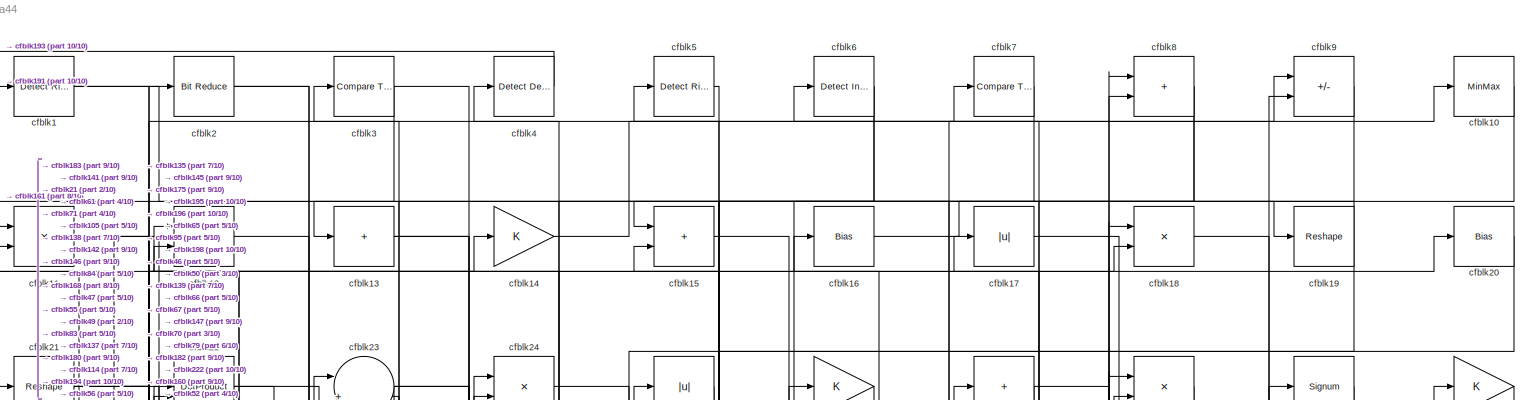
[diagram: root canvas - part 1/10, full width, top band]
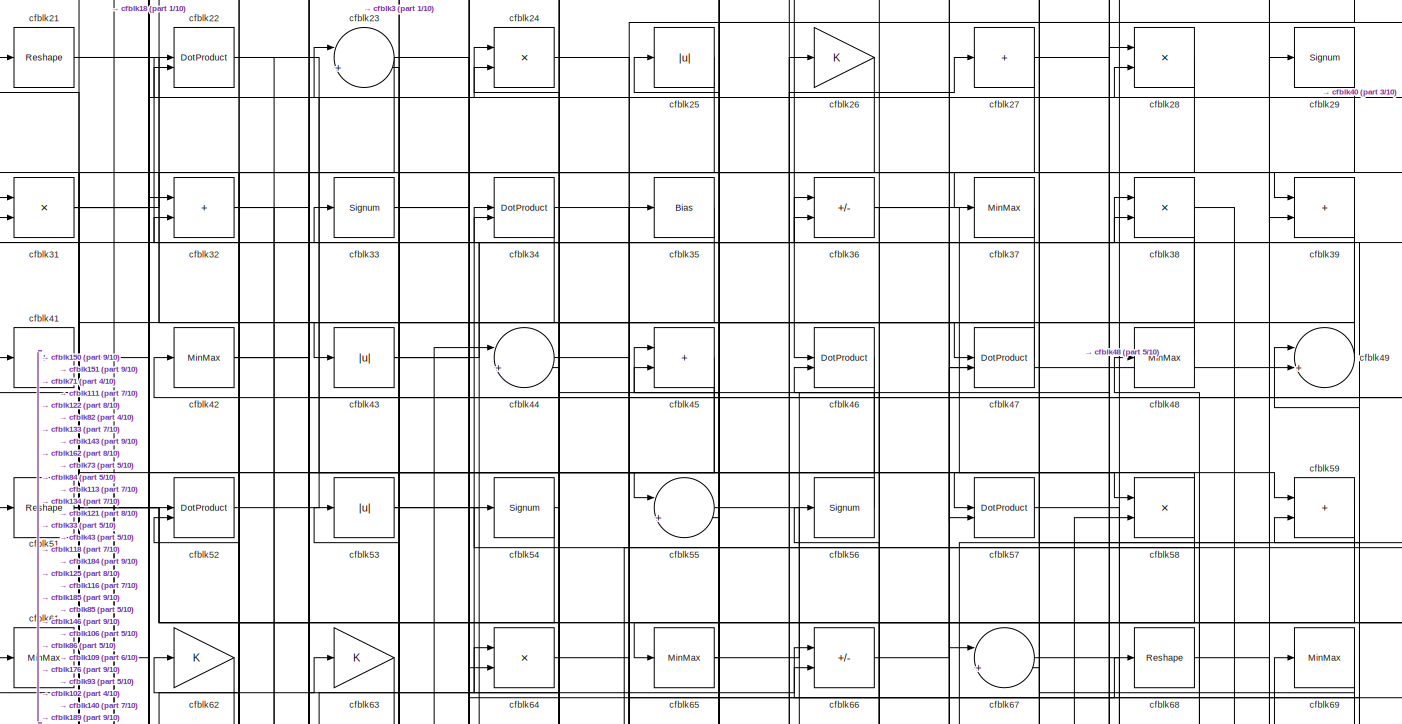
[diagram: root canvas - part 2/10, full width, top band]
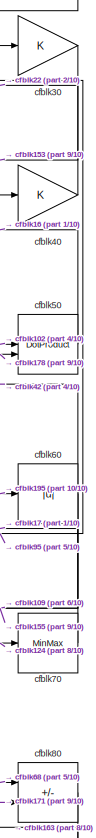
[diagram: root canvas - part 3/10, top right region]
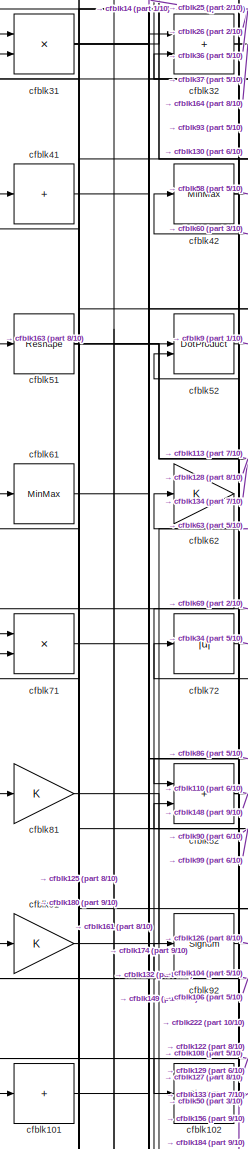
[diagram: root canvas - part 4/10, top left region]
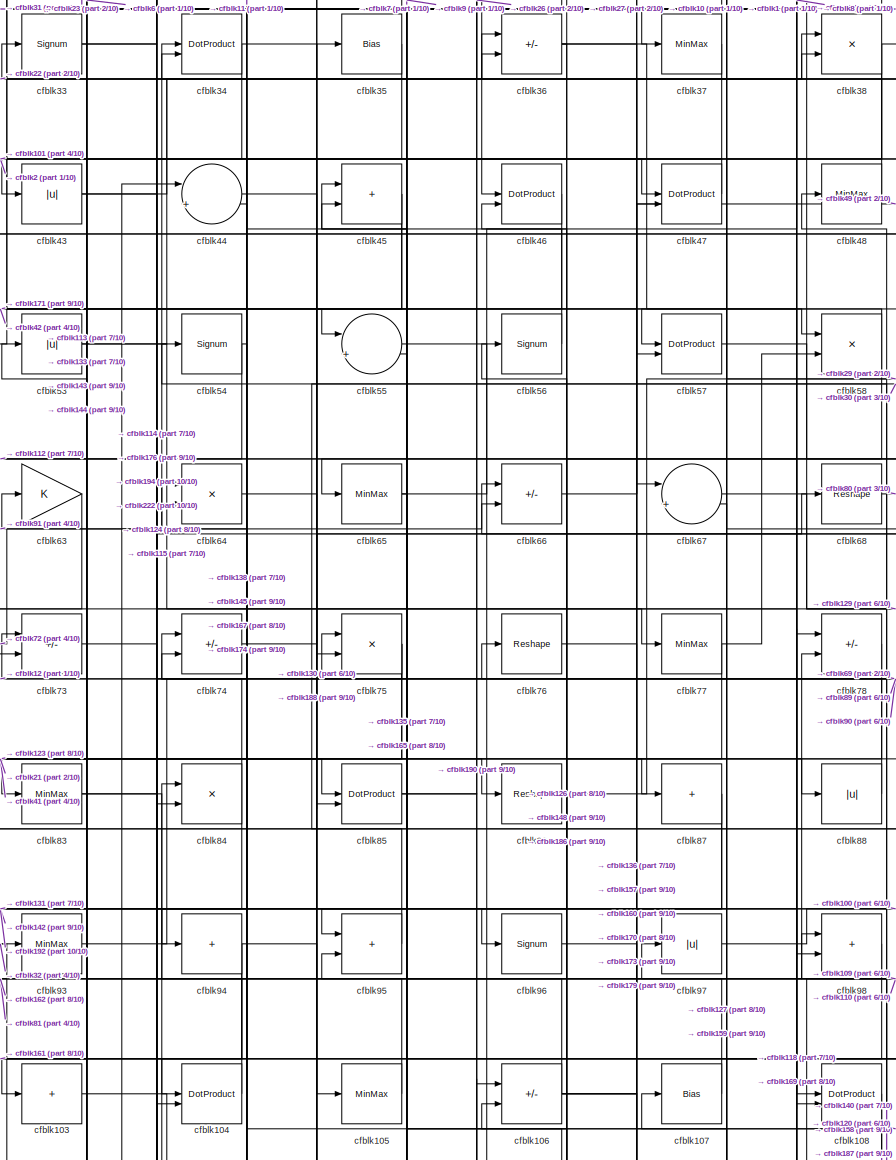
[diagram: root canvas - part 5/10, top center region]
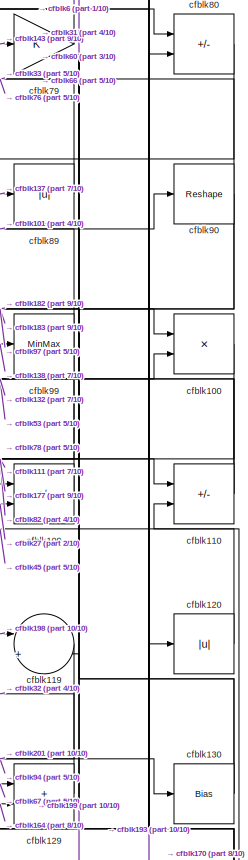
[diagram: root canvas - part 6/10, middle right region]
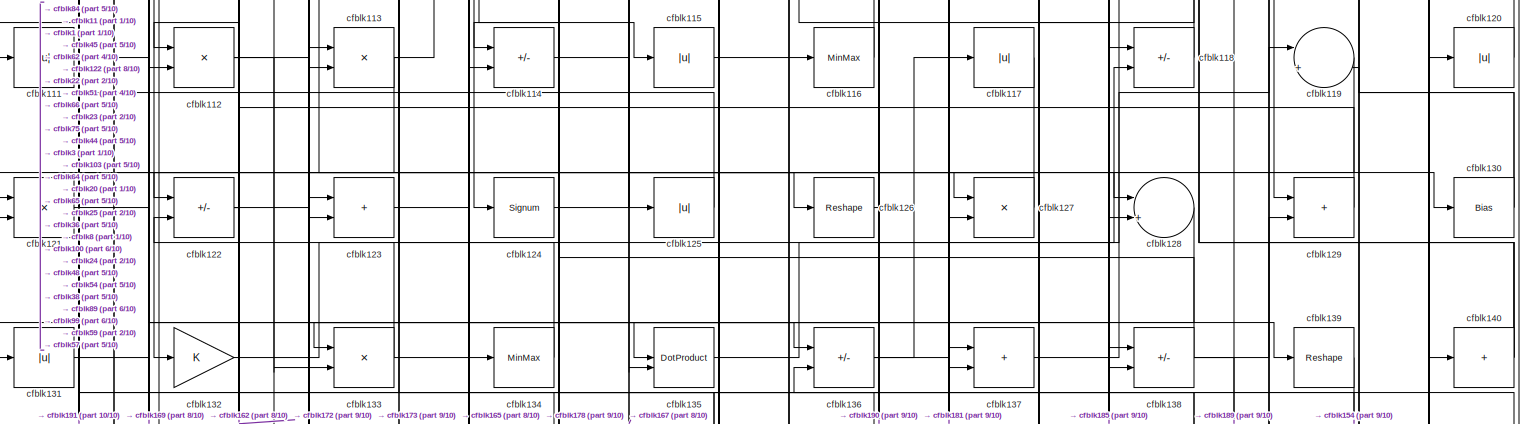
[diagram: root canvas - part 7/10, full width, middle band]
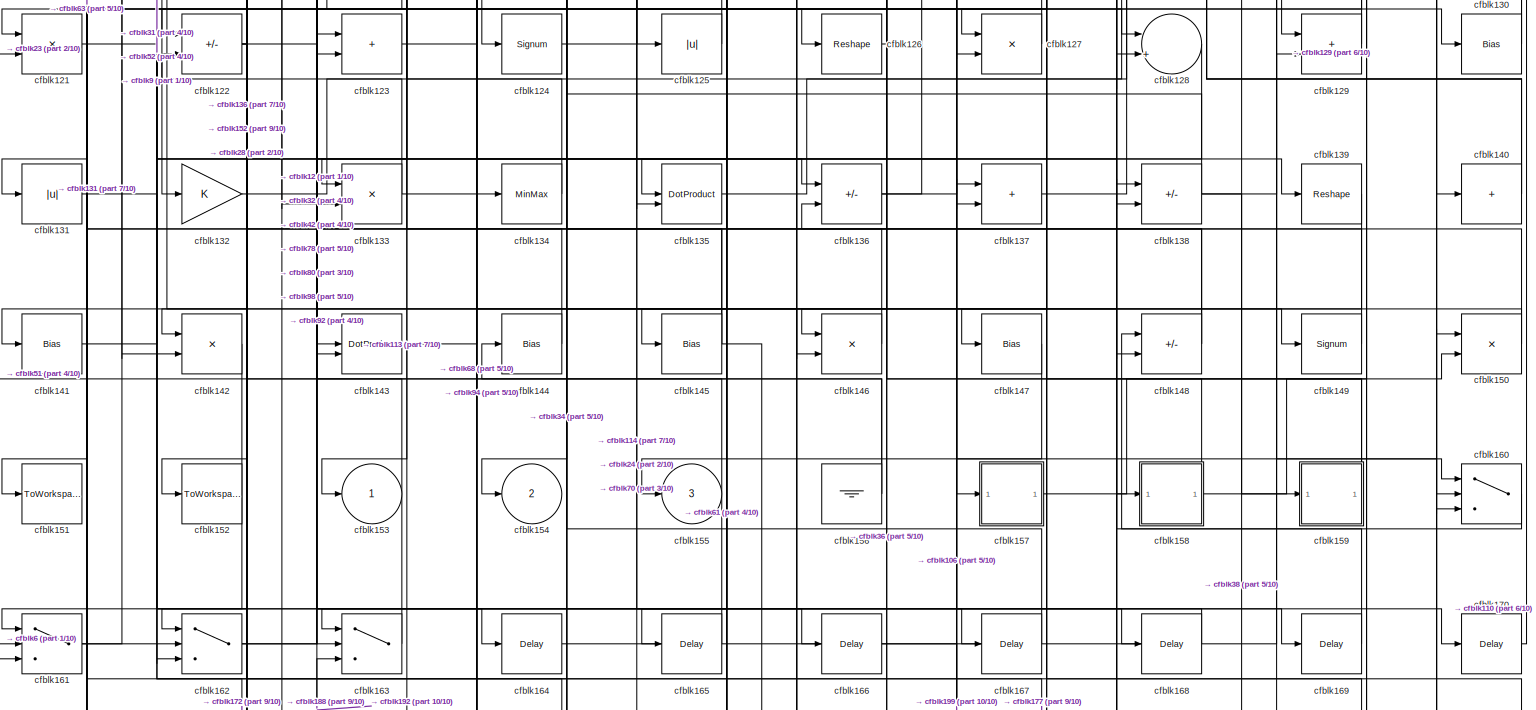
[diagram: root canvas - part 8/10, full width, middle band]
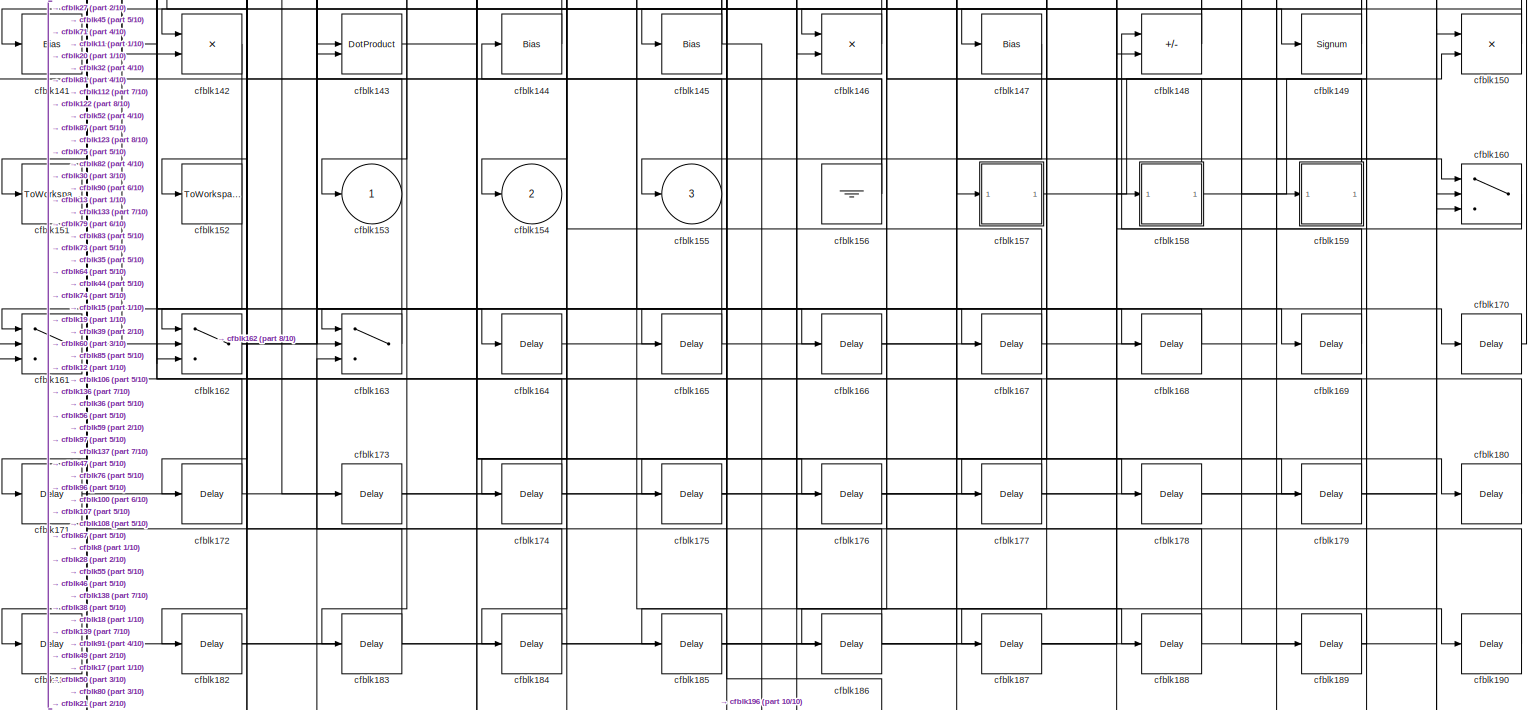
[diagram: root canvas - part 9/10, full width, bottom band]
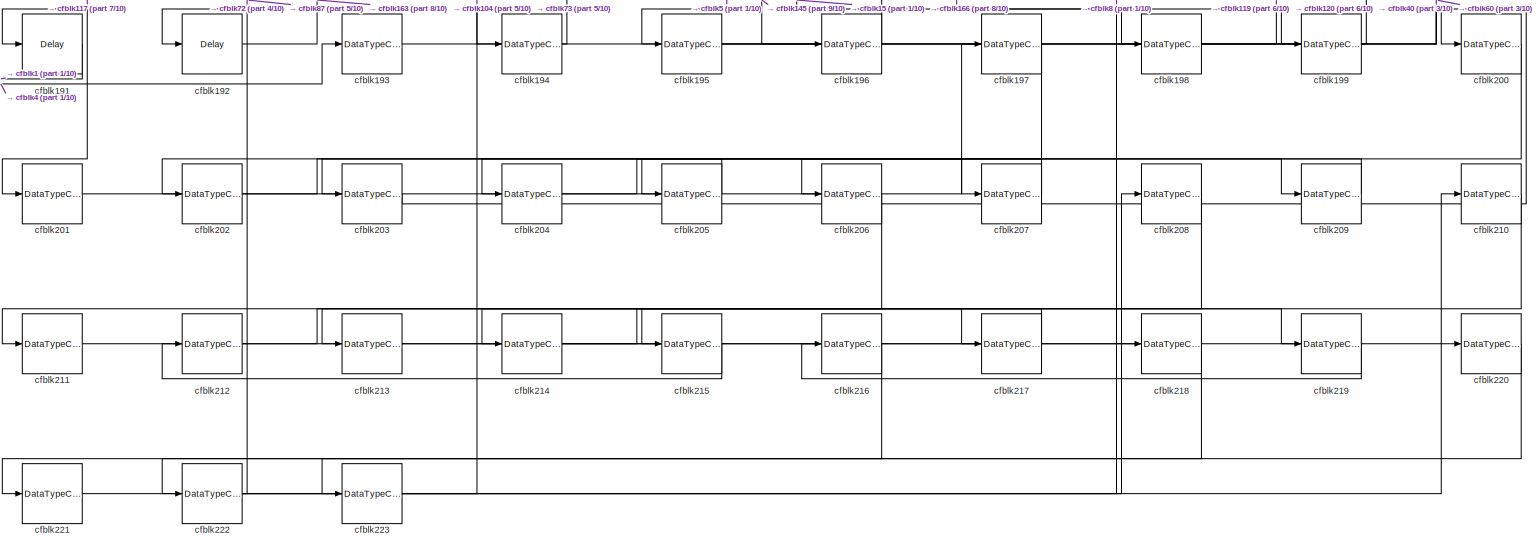
[diagram: root canvas - part 10/10, full width, bottom band]
MODEL slx_49077d01da44
KIND model
CONFIG AbsTol = auto
CONFIG EnableMultiTasking = off
CONFIG FixedStep = auto
CONFIG MaxStep = auto
CONFIG MinStep = auto
CONFIG RelTol = 1e-3
CONFIG SampleTimeConstraint = Unconstrained
CONFIG SolverName = VariableStepAuto
CONFIG StartTime = 0.0
CONFIG StopTime = 10.0
BLOCK [Reference] cfblk1  REF=hdlsllib/Logic and Bit
Operations/Detect Rise
Nonnegative
  SourceBlock = hdlsllib/Logic and Bit\nOperations/Detect Rise\nNonnegative
  SourceType = Detect Rise Nonnegative
BLOCK [MinMax] cfblk10
BLOCK [Product] cfblk100
  Inputs = */
  RndMeth = Zero
  SaturateOnIntegerOverflow = on
BLOCK [Sum] cfblk101
  IconShape = rectangular
  Inputs = +
BLOCK [Signum] cfblk102
BLOCK [Sum] cfblk103
  IconShape = rectangular
  Inputs = +
BLOCK [DotProduct] cfblk104
  OutDataTypeStr = Inherit: Inherit via internal rule
BLOCK [MinMax] cfblk105
BLOCK [Sum] cfblk106
  IconShape = rectangular
  Inputs = +-
BLOCK [Bias] cfblk107
  Bias = 0.0
  SaturateOnIntegerOverflow = off
BLOCK [DotProduct] cfblk108
  OutDataTypeStr = Inherit: Inherit via internal rule
BLOCK [Sum] cfblk109
  IconShape = rectangular
  Inputs = +-
BLOCK [Product] cfblk11
  Inputs = */
  RndMeth = Zero
  SaturateOnIntegerOverflow = on
BLOCK [Sum] cfblk110
  IconShape = rectangular
  Inputs = +-
BLOCK [Abs] cfblk111
  SaturateOnIntegerOverflow = off
BLOCK [Product] cfblk112
  Inputs = */
  RndMeth = Zero
  SaturateOnIntegerOverflow = on
BLOCK [Product] cfblk113
  Inputs = */
  RndMeth = Zero
  SaturateOnIntegerOverflow = on
BLOCK [Sum] cfblk114
  IconShape = rectangular
  Inputs = +-
BLOCK [Abs] cfblk115
  SaturateOnIntegerOverflow = off
BLOCK [MinMax] cfblk116
BLOCK [Abs] cfblk117
  SaturateOnIntegerOverflow = off
BLOCK [Sum] cfblk118
  IconShape = rectangular
  Inputs = +-
BLOCK [Sum] cfblk119
  Inputs = |++
BLOCK [Sum] cfblk12
  IconShape = rectangular
BLOCK [Abs] cfblk120
  SaturateOnIntegerOverflow = off
BLOCK [Product] cfblk121
  Inputs = */
  RndMeth = Zero
  SaturateOnIntegerOverflow = on
BLOCK [Sum] cfblk122
  IconShape = rectangular
  Inputs = +-
BLOCK [Sum] cfblk123
  IconShape = rectangular
BLOCK [Signum] cfblk124
BLOCK [Abs] cfblk125
  SaturateOnIntegerOverflow = off
BLOCK [Reshape] cfblk126
BLOCK [Product] cfblk127
  Inputs = */
  RndMeth = Zero
  SaturateOnIntegerOverflow = on
BLOCK [Sum] cfblk128
  Inputs = |++
BLOCK [Sum] cfblk129
  IconShape = rectangular
BLOCK [Sum] cfblk13
  IconShape = rectangular
  Inputs = +
BLOCK [Bias] cfblk130
  Bias = 0.0
  SaturateOnIntegerOverflow = off
BLOCK [Abs] cfblk131
  SaturateOnIntegerOverflow = off
BLOCK [Gain] cfblk132
BLOCK [Product] cfblk133
  Inputs = */
  RndMeth = Zero
  SaturateOnIntegerOverflow = on
BLOCK [MinMax] cfblk134
BLOCK [DotProduct] cfblk135
  OutDataTypeStr = Inherit: Inherit via internal rule
BLOCK [Sum] cfblk136
  IconShape = rectangular
  Inputs = +-
BLOCK [Sum] cfblk137
  IconShape = rectangular
BLOCK [Sum] cfblk138
  IconShape = rectangular
  Inputs = +-
BLOCK [Reshape] cfblk139
BLOCK [Gain] cfblk14
BLOCK [Sum] cfblk140
  IconShape = rectangular
  Inputs = +
BLOCK [Bias] cfblk141
  Bias = 0.0
  SaturateOnIntegerOverflow = off
BLOCK [Product] cfblk142
  Inputs = */
  RndMeth = Zero
  SaturateOnIntegerOverflow = on
BLOCK [DotProduct] cfblk143
  OutDataTypeStr = Inherit: Inherit via internal rule
BLOCK [Bias] cfblk144
  Bias = 0.0
  SaturateOnIntegerOverflow = off
BLOCK [Bias] cfblk145
  Bias = 0.0
  SaturateOnIntegerOverflow = off
BLOCK [Product] cfblk146
  Inputs = */
  RndMeth = Zero
  SaturateOnIntegerOverflow = on
BLOCK [Bias] cfblk147
  Bias = 0.0
  SaturateOnIntegerOverflow = off
BLOCK [Sum] cfblk148
  IconShape = rectangular
  Inputs = +-
BLOCK [Signum] cfblk149
BLOCK [Sum] cfblk15
  IconShape = rectangular
BLOCK [Product] cfblk150
  Inputs = */
  RndMeth = Zero
  SaturateOnIntegerOverflow = on
BLOCK [ToWorkspace] cfblk151
  MaxDataPoints = inf
  SampleTime = -1
  SaveFormat = Timeseries
  VariableName = simout
BLOCK [ToWorkspace] cfblk152
  MaxDataPoints = inf
  SampleTime = -1
  SaveFormat = Timeseries
  VariableName = simout
BLOCK [Outport] cfblk153
  VectorParamsAs1DForOutWhenUnconnected = off
BLOCK [Outport] cfblk154
  Port = 2
  VectorParamsAs1DForOutWhenUnconnected = off
BLOCK [Outport] cfblk155
  Port = 3
  VectorParamsAs1DForOutWhenUnconnected = off
BLOCK [Ground] cfblk156
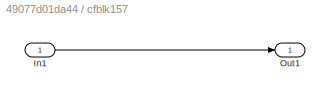
BLOCK [SubSystem] cfblk157
  LibrarySourceBlock = hdlsllib/Ports &\nSubsystems/Subsystem
BLOCK [Inport] cfblk157/In1
BLOCK [Outport] cfblk157/Out1
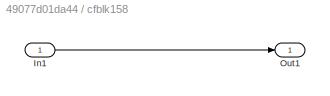
BLOCK [SubSystem] cfblk158
  LibrarySourceBlock = hdlsllib/Ports &\nSubsystems/Subsystem
BLOCK [Inport] cfblk158/In1
BLOCK [Outport] cfblk158/Out1
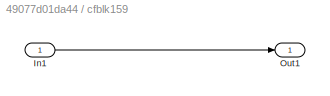
BLOCK [SubSystem] cfblk159
  LibrarySourceBlock = hdlsllib/Ports &\nSubsystems/Subsystem
BLOCK [Inport] cfblk159/In1
BLOCK [Outport] cfblk159/Out1
BLOCK [Bias] cfblk16
  Bias = 0.0
  SaturateOnIntegerOverflow = off
BLOCK [Switch] cfblk160
  InputSameDT = off
  SaturateOnIntegerOverflow = off
BLOCK [Switch] cfblk161
  InputSameDT = off
  SaturateOnIntegerOverflow = off
BLOCK [Switch] cfblk162
  InputSameDT = off
  SaturateOnIntegerOverflow = off
BLOCK [Switch] cfblk163
  InputSameDT = off
  SaturateOnIntegerOverflow = off
BLOCK [Delay] cfblk164
  InputPortMap = u0
  SampleTime = 1
BLOCK [Delay] cfblk165
  InputPortMap = u0
  SampleTime = 1
BLOCK [Delay] cfblk166
  InputPortMap = u0
  SampleTime = 1
BLOCK [Delay] cfblk167
  InputPortMap = u0
  SampleTime = 1
BLOCK [Delay] cfblk168
  InputPortMap = u0
  SampleTime = 1
BLOCK [Delay] cfblk169
  InputPortMap = u0
  SampleTime = 1
BLOCK [Abs] cfblk17
  SaturateOnIntegerOverflow = off
BLOCK [Delay] cfblk170
  InputPortMap = u0
  SampleTime = 1
BLOCK [Delay] cfblk171
  InputPortMap = u0
  SampleTime = 1
BLOCK [Delay] cfblk172
  InputPortMap = u0
  SampleTime = 1
BLOCK [Delay] cfblk173
  InputPortMap = u0
  SampleTime = 1
BLOCK [Delay] cfblk174
  InputPortMap = u0
  SampleTime = 1
BLOCK [Delay] cfblk175
  InputPortMap = u0
  SampleTime = 1
BLOCK [Delay] cfblk176
  InputPortMap = u0
  SampleTime = 1
BLOCK [Delay] cfblk177
  InputPortMap = u0
  SampleTime = 1
BLOCK [Delay] cfblk178
  InputPortMap = u0
  SampleTime = 1
BLOCK [Delay] cfblk179
  InputPortMap = u0
  SampleTime = 1
BLOCK [Product] cfblk18
  Inputs = */
  RndMeth = Zero
  SaturateOnIntegerOverflow = on
BLOCK [Delay] cfblk180
  InputPortMap = u0
  SampleTime = 1
BLOCK [Delay] cfblk181
  InputPortMap = u0
  SampleTime = 1
BLOCK [Delay] cfblk182
  InputPortMap = u0
  SampleTime = 1
BLOCK [Delay] cfblk183
  InputPortMap = u0
  SampleTime = 1
BLOCK [Delay] cfblk184
  InputPortMap = u0
  SampleTime = 1
BLOCK [Delay] cfblk185
  InputPortMap = u0
  SampleTime = 1
BLOCK [Delay] cfblk186
  InputPortMap = u0
  SampleTime = 1
BLOCK [Delay] cfblk187
  InputPortMap = u0
  SampleTime = 1
BLOCK [Delay] cfblk188
  InputPortMap = u0
  SampleTime = 1
BLOCK [Delay] cfblk189
  InputPortMap = u0
  SampleTime = 1
BLOCK [Reshape] cfblk19
BLOCK [Delay] cfblk190
  InputPortMap = u0
  SampleTime = 1
BLOCK [Delay] cfblk191
  InputPortMap = u0
  SampleTime = 1
BLOCK [Delay] cfblk192
  InputPortMap = u0
  SampleTime = 1
BLOCK [DataTypeConversion] cfblk193
  OutDataTypeStr = uint8
  RndMeth = Floor
  SaturateOnIntegerOverflow = off
BLOCK [DataTypeConversion] cfblk194
  OutDataTypeStr = uint8
  RndMeth = Floor
  SaturateOnIntegerOverflow = off
BLOCK [DataTypeConversion] cfblk195
  RndMeth = Floor
  SaturateOnIntegerOverflow = off
BLOCK [DataTypeConversion] cfblk196
  OutDataTypeStr = uint8
  RndMeth = Floor
  SaturateOnIntegerOverflow = off
BLOCK [DataTypeConversion] cfblk197
  RndMeth = Floor
  SaturateOnIntegerOverflow = off
BLOCK [DataTypeConversion] cfblk198
  OutDataTypeStr = uint8
  RndMeth = Floor
  SaturateOnIntegerOverflow = off
BLOCK [DataTypeConversion] cfblk199
  OutDataTypeStr = uint8
  RndMeth = Floor
  SaturateOnIntegerOverflow = off
BLOCK [Reference] cfblk2  REF=hdlsllib/Logic and Bit
Operations/Bit Reduce
  SourceBlock = hdlsllib/Logic and Bit\nOperations/Bit Reduce
  SourceType = Bit Reduce
BLOCK [Bias] cfblk20
  Bias = 0.0
  SaturateOnIntegerOverflow = off
BLOCK [DataTypeConversion] cfblk200
  RndMeth = Floor
  SaturateOnIntegerOverflow = off
BLOCK [DataTypeConversion] cfblk201
  OutDataTypeStr = uint8
  RndMeth = Floor
  SaturateOnIntegerOverflow = off
BLOCK [DataTypeConversion] cfblk202
  RndMeth = Floor
  SaturateOnIntegerOverflow = off
BLOCK [DataTypeConversion] cfblk203
  OutDataTypeStr = uint8
  RndMeth = Floor
  SaturateOnIntegerOverflow = off
BLOCK [DataTypeConversion] cfblk204
  RndMeth = Floor
  SaturateOnIntegerOverflow = off
BLOCK [DataTypeConversion] cfblk205
  OutDataTypeStr = uint8
  RndMeth = Floor
  SaturateOnIntegerOverflow = off
BLOCK [DataTypeConversion] cfblk206
  RndMeth = Floor
  SaturateOnIntegerOverflow = off
BLOCK [DataTypeConversion] cfblk207
  OutDataTypeStr = uint8
  RndMeth = Floor
  SaturateOnIntegerOverflow = off
BLOCK [DataTypeConversion] cfblk208
  RndMeth = Floor
  SaturateOnIntegerOverflow = off
BLOCK [DataTypeConversion] cfblk209
  OutDataTypeStr = uint8
  RndMeth = Floor
  SaturateOnIntegerOverflow = off
BLOCK [Reshape] cfblk21
BLOCK [DataTypeConversion] cfblk210
  RndMeth = Floor
  SaturateOnIntegerOverflow = off
BLOCK [DataTypeConversion] cfblk211
  OutDataTypeStr = uint8
  RndMeth = Floor
  SaturateOnIntegerOverflow = off
BLOCK [DataTypeConversion] cfblk212
  RndMeth = Floor
  SaturateOnIntegerOverflow = off
BLOCK [DataTypeConversion] cfblk213
  OutDataTypeStr = uint8
  RndMeth = Floor
  SaturateOnIntegerOverflow = off
BLOCK [DataTypeConversion] cfblk214
  RndMeth = Floor
  SaturateOnIntegerOverflow = off
BLOCK [DataTypeConversion] cfblk215
  OutDataTypeStr = uint8
  RndMeth = Floor
  SaturateOnIntegerOverflow = off
BLOCK [DataTypeConversion] cfblk216
  RndMeth = Floor
  SaturateOnIntegerOverflow = off
BLOCK [DataTypeConversion] cfblk217
  OutDataTypeStr = uint8
  RndMeth = Floor
  SaturateOnIntegerOverflow = off
BLOCK [DataTypeConversion] cfblk218
  RndMeth = Floor
  SaturateOnIntegerOverflow = off
BLOCK [DataTypeConversion] cfblk219
  OutDataTypeStr = uint8
  RndMeth = Floor
  SaturateOnIntegerOverflow = off
BLOCK [DotProduct] cfblk22
  OutDataTypeStr = Inherit: Inherit via internal rule
BLOCK [DataTypeConversion] cfblk220
  RndMeth = Floor
  SaturateOnIntegerOverflow = off
BLOCK [DataTypeConversion] cfblk221
  OutDataTypeStr = uint8
  RndMeth = Floor
  SaturateOnIntegerOverflow = off
BLOCK [DataTypeConversion] cfblk222
  RndMeth = Floor
  SaturateOnIntegerOverflow = off
BLOCK [DataTypeConversion] cfblk223
  OutDataTypeStr = uint8
  RndMeth = Floor
  SaturateOnIntegerOverflow = off
BLOCK [Sum] cfblk23
  Inputs = |++
BLOCK [Product] cfblk24
  Inputs = */
  RndMeth = Zero
  SaturateOnIntegerOverflow = on
BLOCK [Abs] cfblk25
  SaturateOnIntegerOverflow = off
BLOCK [Gain] cfblk26
BLOCK [Sum] cfblk27
  IconShape = rectangular
  Inputs = +
BLOCK [Product] cfblk28
  Inputs = */
  RndMeth = Zero
  SaturateOnIntegerOverflow = on
BLOCK [Signum] cfblk29
BLOCK [Reference] cfblk3  REF=hdlsllib/Logic and Bit
Operations/Compare
To Zero
  SourceBlock = hdlsllib/Logic and Bit\nOperations/Compare\nTo Zero
  SourceType = Compare To Zero
BLOCK [Gain] cfblk30
BLOCK [Product] cfblk31
  Inputs = */
  RndMeth = Zero
  SaturateOnIntegerOverflow = on
BLOCK [Sum] cfblk32
  IconShape = rectangular
BLOCK [Signum] cfblk33
BLOCK [DotProduct] cfblk34
  OutDataTypeStr = Inherit: Inherit via internal rule
BLOCK [Bias] cfblk35
  Bias = 0.0
  SaturateOnIntegerOverflow = off
BLOCK [Sum] cfblk36
  IconShape = rectangular
  Inputs = +-
BLOCK [MinMax] cfblk37
BLOCK [Product] cfblk38
  Inputs = */
  RndMeth = Zero
  SaturateOnIntegerOverflow = on
BLOCK [Sum] cfblk39
  IconShape = rectangular
BLOCK [Reference] cfblk4  REF=simulink/Logic and Bit
Operations/Detect
Decrease
  LibrarySourceBlock = hdlsllib/Logic and Bit\nOperations/Detect\nDecrease
  SourceBlock = simulink/Logic and Bit\nOperations/Detect\nDecrease
  SourceType = Detect Decrease
BLOCK [Gain] cfblk40
BLOCK [Sum] cfblk41
  IconShape = rectangular
  Inputs = +
BLOCK [MinMax] cfblk42
BLOCK [Abs] cfblk43
  SaturateOnIntegerOverflow = off
BLOCK [Sum] cfblk44
  Inputs = |++
BLOCK [Sum] cfblk45
  IconShape = rectangular
BLOCK [DotProduct] cfblk46
  OutDataTypeStr = Inherit: Inherit via internal rule
BLOCK [DotProduct] cfblk47
  OutDataTypeStr = Inherit: Inherit via internal rule
BLOCK [MinMax] cfblk48
BLOCK [Sum] cfblk49
  Inputs = |++
BLOCK [Reference] cfblk5  REF=hdlsllib/Logic and Bit
Operations/Detect Rise
Nonnegative
  SourceBlock = hdlsllib/Logic and Bit\nOperations/Detect Rise\nNonnegative
  SourceType = Detect Rise Nonnegative
BLOCK [DotProduct] cfblk50
  OutDataTypeStr = Inherit: Inherit via internal rule
BLOCK [Reshape] cfblk51
BLOCK [DotProduct] cfblk52
  OutDataTypeStr = Inherit: Inherit via internal rule
BLOCK [Abs] cfblk53
  SaturateOnIntegerOverflow = off
BLOCK [Signum] cfblk54
BLOCK [Sum] cfblk55
  Inputs = |++
BLOCK [Signum] cfblk56
BLOCK [DotProduct] cfblk57
  OutDataTypeStr = Inherit: Inherit via internal rule
BLOCK [Product] cfblk58
  Inputs = */
  RndMeth = Zero
  SaturateOnIntegerOverflow = on
BLOCK [Sum] cfblk59
  IconShape = rectangular
BLOCK [Reference] cfblk6  REF=simulink/Logic and Bit
Operations/Detect
Increase
  LibrarySourceBlock = hdlsllib/Logic and Bit\nOperations/Detect\nIncrease
  SourceBlock = simulink/Logic and Bit\nOperations/Detect\nIncrease
  SourceType = Detect Increase
BLOCK [Abs] cfblk60
  SaturateOnIntegerOverflow = off
BLOCK [MinMax] cfblk61
BLOCK [Gain] cfblk62
BLOCK [Gain] cfblk63
BLOCK [Product] cfblk64
  Inputs = */
  RndMeth = Zero
  SaturateOnIntegerOverflow = on
BLOCK [MinMax] cfblk65
BLOCK [Sum] cfblk66
  IconShape = rectangular
  Inputs = +-
BLOCK [Sum] cfblk67
  Inputs = |++
BLOCK [Reshape] cfblk68
BLOCK [MinMax] cfblk69
BLOCK [Reference] cfblk7  REF=hdlsllib/Logic and Bit
Operations/Compare
To Constant
  SourceBlock = hdlsllib/Logic and Bit\nOperations/Compare\nTo Constant
  SourceType = Compare To Constant
BLOCK [MinMax] cfblk70
BLOCK [Product] cfblk71
  Inputs = */
  RndMeth = Zero
  SaturateOnIntegerOverflow = on
BLOCK [Abs] cfblk72
  SaturateOnIntegerOverflow = off
BLOCK [Sum] cfblk73
  IconShape = rectangular
  Inputs = +-
BLOCK [Sum] cfblk74
  IconShape = rectangular
  Inputs = +-
BLOCK [Product] cfblk75
  Inputs = */
  RndMeth = Zero
  SaturateOnIntegerOverflow = on
BLOCK [Reshape] cfblk76
BLOCK [MinMax] cfblk77
BLOCK [Sum] cfblk78
  IconShape = rectangular
  Inputs = +-
BLOCK [Gain] cfblk79
BLOCK [Sum] cfblk8
  IconShape = rectangular
BLOCK [Sum] cfblk80
  IconShape = rectangular
  Inputs = +-
BLOCK [Gain] cfblk81
BLOCK [Sum] cfblk82
  IconShape = rectangular
BLOCK [MinMax] cfblk83
BLOCK [Product] cfblk84
  Inputs = */
  RndMeth = Zero
  SaturateOnIntegerOverflow = on
BLOCK [DotProduct] cfblk85
  OutDataTypeStr = Inherit: Inherit via internal rule
BLOCK [Reshape] cfblk86
BLOCK [Sum] cfblk87
  IconShape = rectangular
  Inputs = +
BLOCK [Abs] cfblk88
  SaturateOnIntegerOverflow = off
BLOCK [Abs] cfblk89
  SaturateOnIntegerOverflow = off
BLOCK [Sum] cfblk9
  IconShape = rectangular
  Inputs = +-
BLOCK [Reshape] cfblk90
BLOCK [Gain] cfblk91
BLOCK [Signum] cfblk92
BLOCK [MinMax] cfblk93
BLOCK [Sum] cfblk94
  IconShape = rectangular
  Inputs = +
BLOCK [Sum] cfblk95
  IconShape = rectangular
BLOCK [Signum] cfblk96
BLOCK [Abs] cfblk97
  SaturateOnIntegerOverflow = off
BLOCK [Sum] cfblk98
  IconShape = rectangular
BLOCK [MinMax] cfblk99
LINE cfblk100:1 -> cfblk177:1
LINE cfblk101:1 -> cfblk90:1
LINE cfblk102:1 -> cfblk50:1
LINE cfblk103:1 -> cfblk115:1
LINE cfblk104:1 -> cfblk81:1
LINE cfblk105:1 -> cfblk95:2
NET cfblk106:1 -> cfblk170:1, cfblk179:1, cfblk41:1, cfblk49:2
LINE cfblk107:1 -> cfblk84:1
LINE cfblk108:1 -> cfblk187:1
LINE cfblk109:1 -> cfblk45:2
LINE cfblk10:1 -> cfblk46:1
NET cfblk110:1 -> cfblk53:1, cfblk78:2
LINE cfblk111:1 -> cfblk24:2
NET cfblk112:1 -> cfblk172:1, cfblk173:1, cfblk66:2
NET cfblk113:1 -> cfblk162:1, cfblk23:2, cfblk44:1
LINE cfblk114:1 -> cfblk167:1
LINE cfblk115:1 -> cfblk116:1
LINE cfblk116:1 -> cfblk25:1
LINE cfblk117:1 -> cfblk191:1
LINE cfblk118:1 -> cfblk24:1
LINE cfblk119:1 -> cfblk201:1
NET cfblk11:1 -> cfblk105:1, cfblk138:2, cfblk142:2
LINE cfblk120:1 -> cfblk45:1
LINE cfblk121:1 -> cfblk166:1
NET cfblk122:1 -> cfblk136:1, cfblk152:1, cfblk92:1
LINE cfblk123:1 -> cfblk68:1
LINE cfblk124:1 -> cfblk70:1
LINE cfblk125:1 -> cfblk61:1
LINE cfblk126:1 -> cfblk36:1
LINE cfblk127:1 -> cfblk121:1
LINE cfblk128:1 -> cfblk162:3
LINE cfblk129:1 -> cfblk32:2
LINE cfblk12:1 -> cfblk168:1
NET cfblk130:1 -> cfblk31:1, cfblk66:1
LINE cfblk131:1 -> cfblk169:1
LINE cfblk132:1 -> cfblk100:2
NET cfblk133:1 -> cfblk178:1, cfblk62:1
LINE cfblk134:1 -> cfblk23:1
LINE cfblk135:1 -> cfblk118:2
NET cfblk136:1 -> cfblk117:1, cfblk38:2
LINE cfblk137:1 -> cfblk89:1
NET cfblk138:1 -> cfblk189:1, cfblk64:1, cfblk99:1
LINE cfblk139:1 -> cfblk154:1
NET cfblk13:1 -> cfblk146:2, cfblk180:1
NET cfblk140:1 -> cfblk48:1, cfblk54:1, cfblk59:2
LINE cfblk141:1 -> cfblk20:1
LINE cfblk142:1 -> cfblk181:1
LINE cfblk143:1 -> cfblk79:1
LINE cfblk144:1 -> cfblk73:1
NET cfblk145:1 -> cfblk196:1, cfblk44:2, cfblk74:1
LINE cfblk146:1 -> cfblk12:1
LINE cfblk147:1 -> cfblk175:1
NET cfblk148:1 -> cfblk46:2, cfblk55:2
LINE cfblk149:1 -> cfblk91:1
LINE cfblk14:1 -> cfblk7:1
NET cfblk150:1 -> cfblk141:1, cfblk21:1
NET cfblk156:1 -> cfblk144:1, cfblk52:2
LINE cfblk157/In1:1 -> cfblk157/Out1:1
LINE cfblk157:1 -> cfblk150:2
LINE cfblk158/In1:1 -> cfblk158/Out1:1
NET cfblk158:1 -> cfblk56:1, cfblk97:1
LINE cfblk159/In1:1 -> cfblk159/Out1:1
NET cfblk159:1 -> cfblk106:2, cfblk107:1
LINE cfblk15:1 -> cfblk198:1
LINE cfblk160:1 -> cfblk148:1
NET cfblk161:1 -> cfblk52:1, cfblk9:1
NET cfblk162:1 -> cfblk28:2, cfblk98:1
LINE cfblk163:1 -> cfblk51:1
LINE cfblk164:1 -> cfblk129:2
LINE cfblk165:1 -> cfblk113:1
LINE cfblk166:1 -> cfblk199:1
LINE cfblk167:1 -> cfblk34:2
LINE cfblk168:1 -> cfblk163:1
LINE cfblk169:1 -> cfblk78:1
LINE cfblk16:1 -> cfblk19:1
LINE cfblk170:1 -> cfblk110:2
LINE cfblk171:1 -> cfblk80:2
LINE cfblk172:1 -> cfblk162:2
LINE cfblk173:1 -> cfblk47:2
LINE cfblk174:1 -> cfblk32:1
LINE cfblk175:1 -> cfblk15:2
LINE cfblk176:1 -> cfblk28:1
LINE cfblk177:1 -> cfblk122:2
LINE cfblk178:1 -> cfblk50:2
LINE cfblk179:1 -> cfblk67:2
LINE cfblk17:1 -> cfblk160:2
LINE cfblk180:1 -> cfblk71:2
LINE cfblk181:1 -> cfblk137:1
LINE cfblk182:1 -> cfblk18:1
LINE cfblk183:1 -> cfblk11:2
LINE cfblk184:1 -> cfblk82:2
LINE cfblk185:1 -> cfblk138:1
LINE cfblk186:1 -> cfblk106:1
LINE cfblk187:1 -> cfblk150:1
LINE cfblk188:1 -> cfblk123:1
LINE cfblk189:1 -> cfblk49:1
LINE cfblk18:1 -> cfblk160:3
LINE cfblk190:1 -> cfblk136:2
LINE cfblk191:1 -> cfblk1:1
LINE cfblk192:1 -> cfblk163:3
LINE cfblk193:1 -> cfblk120:1
LINE cfblk194:1 -> cfblk4:1
NET cfblk195:1 -> cfblk40:1, cfblk60:1
LINE cfblk196:1 -> cfblk5:1
LINE cfblk197:1 -> cfblk203:1
LINE cfblk198:1 -> cfblk119:1
LINE cfblk199:1 -> cfblk119:2
NET cfblk19:1 -> cfblk145:1, cfblk15:1
NET cfblk1:1 -> cfblk139:1, cfblk67:1
LINE cfblk200:1 -> cfblk205:1
LINE cfblk201:1 -> cfblk197:1
LINE cfblk202:1 -> cfblk207:1
LINE cfblk203:1 -> cfblk200:1
LINE cfblk204:1 -> cfblk209:1
LINE cfblk205:1 -> cfblk202:1
LINE cfblk206:1 -> cfblk211:1
LINE cfblk207:1 -> cfblk204:1
LINE cfblk208:1 -> cfblk213:1
LINE cfblk209:1 -> cfblk206:1
LINE cfblk20:1 -> cfblk135:2
LINE cfblk210:1 -> cfblk215:1
LINE cfblk211:1 -> cfblk208:1
LINE cfblk212:1 -> cfblk217:1
LINE cfblk213:1 -> cfblk210:1
LINE cfblk214:1 -> cfblk219:1
LINE cfblk215:1 -> cfblk212:1
LINE cfblk216:1 -> cfblk221:1
LINE cfblk217:1 -> cfblk214:1
LINE cfblk218:1 -> cfblk223:1
LINE cfblk219:1 -> cfblk216:1
NET cfblk21:1 -> cfblk143:1, cfblk18:2, cfblk84:2, cfblk85:2
LINE cfblk220:1 -> cfblk222:1
LINE cfblk221:1 -> cfblk218:1
NET cfblk222:1 -> cfblk104:2, cfblk72:1, cfblk8:2
LINE cfblk223:1 -> cfblk220:1
NET cfblk22:1 -> cfblk133:2, cfblk59:1
NET cfblk23:1 -> cfblk121:2, cfblk39:2, cfblk85:1
LINE cfblk24:1 -> cfblk125:1
LINE cfblk25:1 -> cfblk71:1
LINE cfblk26:1 -> cfblk82:1
NET cfblk27:1 -> cfblk109:2, cfblk151:1
LINE cfblk28:1 -> cfblk122:1
LINE cfblk29:1 -> cfblk73:2
NET cfblk2:1 -> cfblk47:1, cfblk55:1
LINE cfblk30:1 -> cfblk153:1
NET cfblk31:1 -> cfblk108:2, cfblk127:2, cfblk36:2, cfblk37:1
NET cfblk32:1 -> cfblk164:1, cfblk93:1
NET cfblk33:1 -> cfblk39:1, cfblk98:2
NET cfblk34:1 -> cfblk103:1, cfblk57:2
LINE cfblk35:1 -> cfblk174:1
NET cfblk36:1 -> cfblk118:1, cfblk186:1, cfblk88:1
LINE cfblk37:1 -> cfblk101:1
NET cfblk38:1 -> cfblk114:2, cfblk127:1, cfblk159:1
NET cfblk39:1 -> cfblk184:1, cfblk185:1
NET cfblk3:1 -> cfblk137:2, cfblk13:1
LINE cfblk40:1 -> cfblk22:2
LINE cfblk41:1 -> cfblk86:1
NET cfblk42:1 -> cfblk128:1, cfblk58:1
NET cfblk43:1 -> cfblk26:1, cfblk77:1
LINE cfblk44:1 -> cfblk87:1
NET cfblk45:1 -> cfblk112:2, cfblk171:1
LINE cfblk46:1 -> cfblk75:2
LINE cfblk47:1 -> cfblk43:1
LINE cfblk48:1 -> cfblk22:1
LINE cfblk49:1 -> cfblk3:1
LINE cfblk4:1 -> cfblk193:1
LINE cfblk50:1 -> cfblk16:1
NET cfblk51:1 -> cfblk113:2, cfblk128:2, cfblk134:1
LINE cfblk52:1 -> cfblk9:2
NET cfblk53:1 -> cfblk108:1, cfblk38:1
NET cfblk54:1 -> cfblk112:1, cfblk94:1
LINE cfblk55:1 -> cfblk158:1
LINE cfblk56:1 -> cfblk11:1
LINE cfblk57:1 -> cfblk140:1
NET cfblk58:1 -> cfblk57:1, cfblk64:2
LINE cfblk59:1 -> cfblk146:1
LINE cfblk5:1 -> cfblk195:1
NET cfblk60:1 -> cfblk109:1, cfblk155:1, cfblk42:1
LINE cfblk61:1 -> cfblk14:1
LINE cfblk62:1 -> cfblk132:1
LINE cfblk63:1 -> cfblk161:1
LINE cfblk64:1 -> cfblk188:1
NET cfblk65:1 -> cfblk135:1, cfblk8:1
LINE cfblk66:1 -> cfblk10:1
LINE cfblk67:1 -> cfblk129:1
LINE cfblk68:1 -> cfblk80:1
LINE cfblk69:1 -> cfblk102:1
NET cfblk6:1 -> cfblk161:2, cfblk83:1
LINE cfblk70:1 -> cfblk17:1
LINE cfblk71:1 -> cfblk2:1
LINE cfblk72:1 -> cfblk34:1
LINE cfblk73:1 -> cfblk194:1
LINE cfblk74:1 -> cfblk35:1
NET cfblk75:1 -> cfblk133:1, cfblk143:2, cfblk74:2
LINE cfblk76:1 -> cfblk157:1
NET cfblk77:1 -> cfblk58:2, cfblk96:1
LINE cfblk78:1 -> cfblk123:2
LINE cfblk79:1 -> cfblk6:1
LINE cfblk7:1 -> cfblk95:1
LINE cfblk80:1 -> cfblk163:2
LINE cfblk81:1 -> cfblk149:1
NET cfblk82:1 -> cfblk110:1, cfblk148:2
NET cfblk83:1 -> cfblk104:1, cfblk176:1
NET cfblk84:1 -> cfblk12:2, cfblk131:1
NET cfblk85:1 -> cfblk190:1, cfblk27:1
LINE cfblk86:1 -> cfblk29:1
NET cfblk87:1 -> cfblk142:1, cfblk192:1
LINE cfblk88:1 -> cfblk75:1
LINE cfblk89:1 -> cfblk76:1
NET cfblk8:1 -> cfblk114:1, cfblk147:1
NET cfblk90:1 -> cfblk182:1, cfblk183:1, cfblk33:1
LINE cfblk91:1 -> cfblk63:1
LINE cfblk92:1 -> cfblk126:1
LINE cfblk93:1 -> cfblk69:1
NET cfblk94:1 -> cfblk124:1, cfblk130:1, cfblk161:3
LINE cfblk95:1 -> cfblk30:1
LINE cfblk96:1 -> cfblk160:1
LINE cfblk97:1 -> cfblk100:1
LINE cfblk98:1 -> cfblk165:1
NET cfblk99:1 -> cfblk111:1, cfblk31:2
LINE cfblk9:1 -> cfblk65:1
note: NET lines group one-source signal fan-out (src -> all destinations, sorted); 1:1 wires keep LINE
